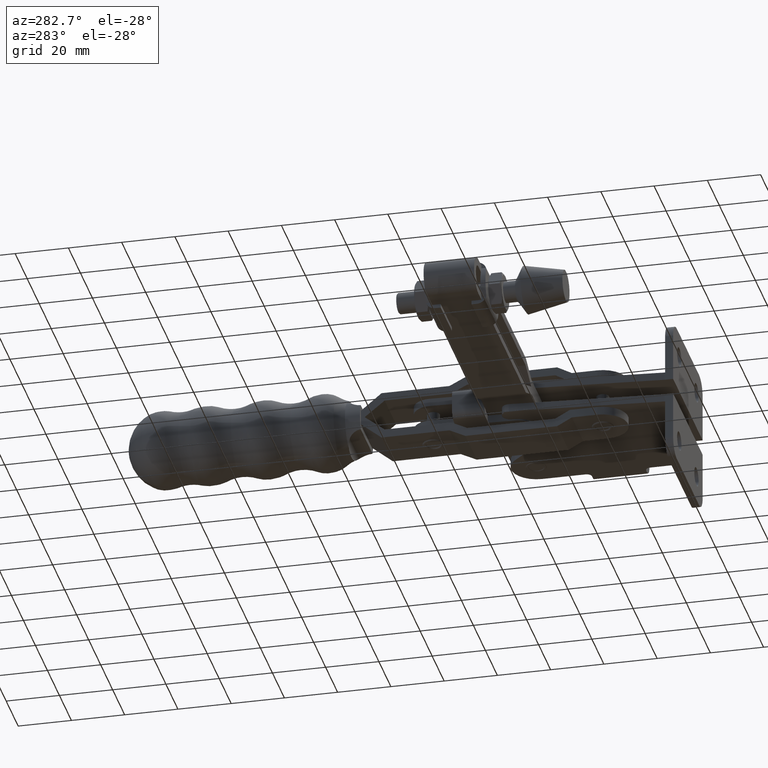
[diagram: clean part render]
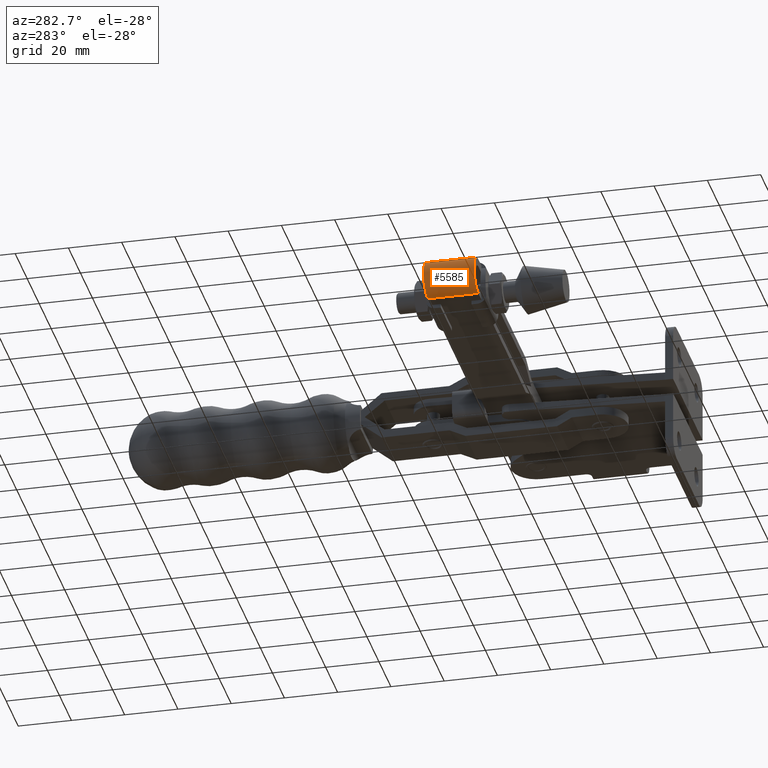
[diagram: same view with one face highlighted and labeled with its STEP entity id]
A machine part, auxiliary view. The second image highlights one B-rep face of the part: STEP entity #5585.
In plain terms, the highlighted cylindrical surface (edge-blend (fillet) strip) has radius 7.05 mm, axis along (0, -1, 0).
Its self-contained STEP definition (entity closure, byte-faithful):
#37 = ORIENTED_EDGE ( 'NONE', *, *, #4657, .F. ) ;
#295 = ORIENTED_EDGE ( 'NONE', *, *, #3543, .T. ) ;
#554 = CARTESIAN_POINT ( 'NONE',  ( -148.4478587574616600, 70.16000000000022400, -7.049999999999924300 ) ) ;
#571 = DIRECTION ( 'NONE',  ( 1.000000000000000000, 0.0000000000000000000, -1.397311792589117300E-015 ) ) ;
#1392 = VECTOR ( 'NONE', #6173, 1000.000000000000000 ) ;
#1465 = CIRCLE ( 'NONE', #8501, 7.050000000000000700 ) ;
#1478 = EDGE_CURVE ( 'NONE', #5519, #1626, #1465, .T. ) ;
#1626 = VERTEX_POINT ( 'NONE', #10789 ) ;
#1702 = EDGE_LOOP ( 'NONE', ( #10284, #37, #2526, #295 ) ) ;
#2237 = EDGE_CURVE ( 'NONE', #2563, #10959, #5071, .T. ) ;
#2526 = ORIENTED_EDGE ( 'NONE', *, *, #1478, .F. ) ;
#2528 = AXIS2_PLACEMENT_3D ( 'NONE', #5313, #4255, #571 ) ;
#2563 = VERTEX_POINT ( 'NONE', #3571 ) ;
#2595 = CYLINDRICAL_SURFACE ( 'NONE', #3758, 7.050000000000000700 ) ;
#2834 = DIRECTION ( 'NONE',  ( 0.0000000000000000000, -1.000000000000000000, 1.749992810198821300E-030 ) ) ;
#2879 = FACE_OUTER_BOUND ( 'NONE', #1702, .T. ) ;
#3543 = EDGE_CURVE ( 'NONE', #5519, #2563, #3862, .T. ) ;
#3571 = CARTESIAN_POINT ( 'NONE',  ( -148.4478587574617200, 51.16000000000018800, -7.049999999999922600 ) ) ;
#3758 = AXIS2_PLACEMENT_3D ( 'NONE', #6603, #2834, #5653 ) ;
#3862 = LINE ( 'NONE', #554, #1392 ) ;
#4255 = DIRECTION ( 'NONE',  ( 0.0000000000000000000, 1.000000000000000000, -1.749992810198821300E-030 ) ) ;
#4657 = EDGE_CURVE ( 'NONE', #1626, #10959, #11326, .T. ) ;
#5071 = CIRCLE ( 'NONE', #2528, 7.050000000000000700 ) ;
#5313 = CARTESIAN_POINT ( 'NONE',  ( -148.4478587574616600, 51.16000000000018800, 7.294305202591932700E-014 ) ) ;
#5519 = VERTEX_POINT ( 'NONE', #6478 ) ;
#5585 = ADVANCED_FACE ( 'NONE', ( #2879 ), #2595, .T. ) ;
#5653 = DIRECTION ( 'NONE',  ( 1.000000000000000000, 0.0000000000000000000, -1.397311792589117300E-015 ) ) ;
#6173 = DIRECTION ( 'NONE',  ( 0.0000000000000000000, -1.000000000000000000, 1.749992810198821300E-030 ) ) ;
#6478 = CARTESIAN_POINT ( 'NONE',  ( -148.4478587574616600, 70.16000000000022400, -7.049999999999923400 ) ) ;
#6603 = CARTESIAN_POINT ( 'NONE',  ( -148.4478587574616600, 70.16000000000022400, 7.294305202591925200E-014 ) ) ;
#8000 = DIRECTION ( 'NONE',  ( 0.0000000000000000000, -1.000000000000000000, 1.749992810198821300E-030 ) ) ;
#8501 = AXIS2_PLACEMENT_3D ( 'NONE', #8932, #9669, #10505 ) ;
#8786 = VECTOR ( 'NONE', #8000, 1000.000000000000000 ) ;
#8932 = CARTESIAN_POINT ( 'NONE',  ( -148.4478587574616600, 70.16000000000022400, 7.294305202591925200E-014 ) ) ;
#9669 = DIRECTION ( 'NONE',  ( 0.0000000000000000000, 1.000000000000000000, -1.749992810198821300E-030 ) ) ;
#10270 = CARTESIAN_POINT ( 'NONE',  ( -148.4478587574616600, 51.16000000000018800, 7.050000000000072700 ) ) ;
#10284 = ORIENTED_EDGE ( 'NONE', *, *, #2237, .T. ) ;
#10505 = DIRECTION ( 'NONE',  ( 1.000000000000000000, 0.0000000000000000000, -1.397311792589117300E-015 ) ) ;
#10789 = CARTESIAN_POINT ( 'NONE',  ( -148.4478587574616600, 70.16000000000022400, 7.050000000000070900 ) ) ;
#10959 = VERTEX_POINT ( 'NONE', #10270 ) ;
#11326 = LINE ( 'NONE', #11805, #8786 ) ;
#11805 = CARTESIAN_POINT ( 'NONE',  ( -148.4478587574616600, 70.16000000000022400, 7.050000000000070900 ) ) ;